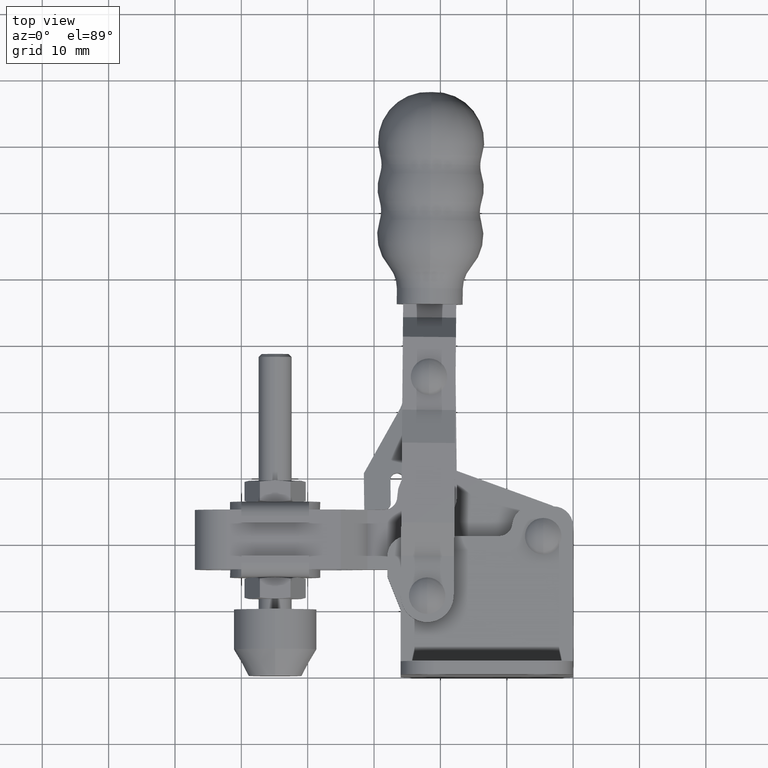
[diagram: clean part render]
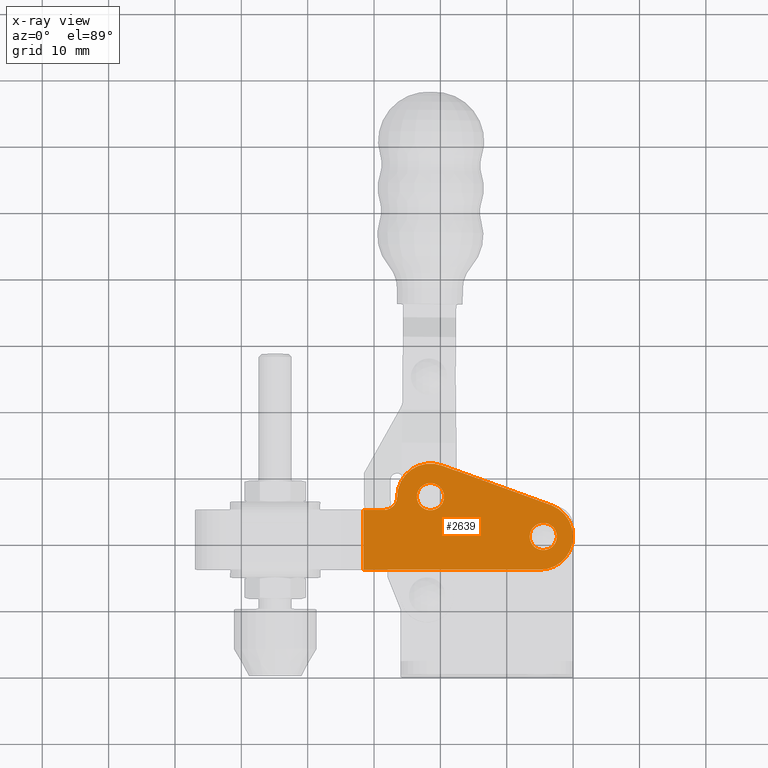
[diagram: x-ray — body ghosted, one internal face saturated and labeled with its STEP entity id]
A machine part, top view, then the same camera in x-ray: the body is ghosted and one INTERNAL B-rep face — a face not visible from any outside direction — is saturated and labeled: STEP entity #2639.
In plain terms, the highlighted planar face has unit normal (-0, 0, 1).
Its self-contained STEP definition (entity closure, byte-faithful):
#6 = CARTESIAN_POINT ( 'NONE',  ( -21.49999999999967000, 26.99999999999953800, -1.999949999999928800 ) ) ;
#23 = CIRCLE ( 'NONE', #3112, 2.049999999999999800 ) ;
#308 = ORIENTED_EDGE ( 'NONE', *, *, #2673, .F. ) ;
#334 = LINE ( 'NONE', #5895, #2650 ) ;
#336 = CARTESIAN_POINT ( 'NONE',  ( -4.999999999999595000, 21.00000000000011700, -1.999949999999875300 ) ) ;
#594 = CIRCLE ( 'NONE', #658, 2.049999999999999800 ) ;
#642 = CIRCLE ( 'NONE', #7524, 2.049999999999999800 ) ;
#658 = AXIS2_PLACEMENT_3D ( 'NONE', #1041, #7095, #1915 ) ;
#898 = EDGE_LOOP ( 'NONE', ( #9613, #5431, #7912, #7868, #4305, #8903, #1266, #11174 ) ) ;
#1041 = CARTESIAN_POINT ( 'NONE',  ( -4.499999999999983100, 20.99999999999997900, -1.999949999999873800 ) ) ;
#1095 = CARTESIAN_POINT ( 'NONE',  ( -6.549999999999981200, 20.99999999999997900, -1.999949999999880200 ) ) ;
#1199 = DIRECTION ( 'NONE',  ( 0.0000000000000000000, -1.000000000000000000, 0.0000000000000000000 ) ) ;
#1266 = ORIENTED_EDGE ( 'NONE', *, *, #9165, .T. ) ;
#1361 = CARTESIAN_POINT ( 'NONE',  ( -19.44999999999966900, 26.99999999999953800, -1.999949999999922200 ) ) ;
#1392 = ORIENTED_EDGE ( 'NONE', *, *, #5196, .F. ) ;
#1646 = CARTESIAN_POINT ( 'NONE',  ( 2.004409014085022400, 32.00000000000009900, -1.999949999999852900 ) ) ;
#1742 = VERTEX_POINT ( 'NONE', #10714 ) ;
#1816 = EDGE_CURVE ( 'NONE', #7513, #4403, #6682, .T. ) ;
#1915 = DIRECTION ( 'NONE',  ( 0.0000000000000000000, -1.000000000000000000, 0.0000000000000000000 ) ) ;
#2030 = LINE ( 'NONE', #8607, #6368 ) ;
#2048 = FACE_BOUND ( 'NONE', #6834, .T. ) ;
#2452 = AXIS2_PLACEMENT_3D ( 'NONE', #9058, #3855, #9939 ) ;
#2639 = ADVANCED_FACE ( 'NONE', ( #2048, #11001, #8727 ), #11021, .F. ) ;
#2650 = VECTOR ( 'NONE', #11082, 1000.000000000000000 ) ;
#2673 = EDGE_CURVE ( 'NONE', #5478, #5966, #23, .T. ) ;
#2993 = DIRECTION ( 'NONE',  ( 3.218037752536709400E-015, 1.540743955509788700E-032, -1.000000000000000000 ) ) ;
#3060 = AXIS2_PLACEMENT_3D ( 'NONE', #336, #6397, #1199 ) ;
#3112 = AXIS2_PLACEMENT_3D ( 'NONE', #6, #3678, #10577 ) ;
#3164 = CARTESIAN_POINT ( 'NONE',  ( 2.004409014085022400, 15.99999999999999600, -1.999949999999852900 ) ) ;
#3252 = CARTESIAN_POINT ( 'NONE',  ( -23.54999999999966700, 26.99999999999953800, -1.999949999999935300 ) ) ;
#3297 = EDGE_CURVE ( 'NONE', #8218, #8812, #2030, .T. ) ;
#3332 = EDGE_CURVE ( 'NONE', #8812, #7860, #9645, .T. ) ;
#3525 = CARTESIAN_POINT ( 'NONE',  ( -4.999999999999595000, 21.00000000000011700, -1.999949999999875300 ) ) ;
#3529 = CARTESIAN_POINT ( 'NONE',  ( -3.291284684566062200, 25.69896711744242200, -1.999949999999869800 ) ) ;
#3575 = CIRCLE ( 'NONE', #2452, 5.000000000000559600 ) ;
#3678 = DIRECTION ( 'NONE',  ( 3.218037752536709400E-015, 1.540743955509788700E-032, -1.000000000000000000 ) ) ;
#3699 = AXIS2_PLACEMENT_3D ( 'NONE', #1646, #4541, #7558 ) ;
#3807 = VERTEX_POINT ( 'NONE', #1095 ) ;
#3855 = DIRECTION ( 'NONE',  ( 3.218037752536709400E-015, 1.540743955509788700E-032, -1.000000000000000000 ) ) ;
#3874 = CARTESIAN_POINT ( 'NONE',  ( -4.499999999999983100, 20.99999999999997900, -1.999949999999873800 ) ) ;
#4305 = ORIENTED_EDGE ( 'NONE', *, *, #3297, .T. ) ;
#4370 = EDGE_CURVE ( 'NONE', #11014, #1742, #8109, .T. ) ;
#4403 = VERTEX_POINT ( 'NONE', #8403 ) ;
#4455 = CARTESIAN_POINT ( 'NONE',  ( -19.79128468456598700, 31.69896711744225800, -1.999949999999923100 ) ) ;
#4541 = DIRECTION ( 'NONE',  ( -3.218037752536709400E-015, 0.0000000000000000000, 1.000000000000000000 ) ) ;
#4705 = VECTOR ( 'NONE', #6729, 1000.000000000000100 ) ;
#4745 = EDGE_CURVE ( 'NONE', #4403, #11014, #11044, .T. ) ;
#4758 = DIRECTION ( 'NONE',  ( 0.0000000000000000000, -1.000000000000000000, 0.0000000000000000000 ) ) ;
#4767 = EDGE_CURVE ( 'NONE', #3807, #10830, #5367, .T. ) ;
#4957 = EDGE_CURVE ( 'NONE', #6342, #7513, #6025, .T. ) ;
#4980 = EDGE_CURVE ( 'NONE', #1742, #8218, #334, .T. ) ;
#5196 = EDGE_CURVE ( 'NONE', #10830, #3807, #594, .T. ) ;
#5316 = ORIENTED_EDGE ( 'NONE', *, *, #4767, .F. ) ;
#5367 = CIRCLE ( 'NONE', #6526, 2.049999999999999800 ) ;
#5431 = ORIENTED_EDGE ( 'NONE', *, *, #4745, .T. ) ;
#5478 = VERTEX_POINT ( 'NONE', #3252 ) ;
#5556 = CARTESIAN_POINT ( 'NONE',  ( -31.62125233435353900, 25.00000000000011700, -1.999949999999959500 ) ) ;
#5817 = CARTESIAN_POINT ( 'NONE',  ( -26.50000000000027000, 26.99999999999995400, -1.999949999999944800 ) ) ;
#5854 = CARTESIAN_POINT ( 'NONE',  ( -3.291284684566082100, 25.69896711744242500, -1.999949999999869800 ) ) ;
#5895 = CARTESIAN_POINT ( 'NONE',  ( -31.62125233435353500, 32.00000000000000000, -1.999949999999960800 ) ) ;
#5966 = VERTEX_POINT ( 'NONE', #1361 ) ;
#6025 = LINE ( 'NONE', #5854, #4705 ) ;
#6279 = CARTESIAN_POINT ( 'NONE',  ( -28.49999999999967000, 25.00000000000012100, -1.999949999999950800 ) ) ;
#6342 = VERTEX_POINT ( 'NONE', #4455 ) ;
#6368 = VECTOR ( 'NONE', #10047, 1000.000000000000000 ) ;
#6397 = DIRECTION ( 'NONE',  ( 3.218037752536709400E-015, 1.540743955509788700E-032, -1.000000000000000000 ) ) ;
#6526 = AXIS2_PLACEMENT_3D ( 'NONE', #3874, #9955, #4758 ) ;
#6627 = ORIENTED_EDGE ( 'NONE', *, *, #7657, .F. ) ;
#6682 = CIRCLE ( 'NONE', #9067, 5.000000000000115500 ) ;
#6729 = DIRECTION ( 'NONE',  ( 0.9397934234884394200, -0.3417430630866977700, 3.024290716371515900E-015 ) ) ;
#6834 = EDGE_LOOP ( 'NONE', ( #1392, #5316 ) ) ;
#7088 = AXIS2_PLACEMENT_3D ( 'NONE', #10182, #10105, #10078 ) ;
#7095 = DIRECTION ( 'NONE',  ( 3.218037752536709400E-015, 1.540743955509788700E-032, -1.000000000000000000 ) ) ;
#7513 = VERTEX_POINT ( 'NONE', #3529 ) ;
#7524 = AXIS2_PLACEMENT_3D ( 'NONE', #8194, #2993, #9071 ) ;
#7558 = DIRECTION ( 'NONE',  ( 0.0000000000000000000, -1.000000000000000000, 0.0000000000000000000 ) ) ;
#7657 = EDGE_CURVE ( 'NONE', #5966, #5478, #642, .T. ) ;
#7860 = VERTEX_POINT ( 'NONE', #5817 ) ;
#7868 = ORIENTED_EDGE ( 'NONE', *, *, #4980, .T. ) ;
#7912 = ORIENTED_EDGE ( 'NONE', *, *, #4370, .T. ) ;
#8109 = LINE ( 'NONE', #3164, #10402 ) ;
#8194 = CARTESIAN_POINT ( 'NONE',  ( -21.49999999999967000, 26.99999999999953800, -1.999949999999928800 ) ) ;
#8218 = VERTEX_POINT ( 'NONE', #5556 ) ;
#8360 = DIRECTION ( 'NONE',  ( -1.000000000000000000, 0.0000000000000000000, -3.218037752536707800E-015 ) ) ;
#8368 = CARTESIAN_POINT ( 'NONE',  ( -4.999999999999595000, 15.99999999999999600, -1.999949999999875300 ) ) ;
#8403 = CARTESIAN_POINT ( 'NONE',  ( 5.212844045310305300E-013, 21.00000000000011700, -1.999949999999859300 ) ) ;
#8471 = DIRECTION ( 'NONE',  ( 0.0000000000000000000, -1.000000000000000000, 0.0000000000000000000 ) ) ;
#8508 = DIRECTION ( 'NONE',  ( 3.218037752536709400E-015, 1.540743955509788700E-032, -1.000000000000000000 ) ) ;
#8607 = CARTESIAN_POINT ( 'NONE',  ( -56.99999999999965200, 25.00000000000009200, -1.999950000000042700 ) ) ;
#8727 = FACE_OUTER_BOUND ( 'NONE', #898, .T. ) ;
#8812 = VERTEX_POINT ( 'NONE', #6279 ) ;
#8903 = ORIENTED_EDGE ( 'NONE', *, *, #3332, .T. ) ;
#8941 = CARTESIAN_POINT ( 'NONE',  ( -2.449999999999984600, 20.99999999999997900, -1.999949999999867100 ) ) ;
#9058 = CARTESIAN_POINT ( 'NONE',  ( -21.49999999999967000, 26.99999999999953800, -1.999949999999928800 ) ) ;
#9067 = AXIS2_PLACEMENT_3D ( 'NONE', #3525, #8508, #8471 ) ;
#9071 = DIRECTION ( 'NONE',  ( 0.0000000000000000000, -1.000000000000000000, 0.0000000000000000000 ) ) ;
#9165 = EDGE_CURVE ( 'NONE', #7860, #6342, #3575, .T. ) ;
#9613 = ORIENTED_EDGE ( 'NONE', *, *, #1816, .T. ) ;
#9645 = CIRCLE ( 'NONE', #7088, 1.999999999999404900 ) ;
#9939 = DIRECTION ( 'NONE',  ( 6.938893903906452300E-016, -1.000000000000000000, 0.0000000000000000000 ) ) ;
#9955 = DIRECTION ( 'NONE',  ( 3.218037752536709400E-015, 1.540743955509788700E-032, -1.000000000000000000 ) ) ;
#10047 = DIRECTION ( 'NONE',  ( 1.000000000000000000, 9.738798461624190700E-016, 3.218037752536707800E-015 ) ) ;
#10078 = DIRECTION ( 'NONE',  ( 0.0000000000000000000, -1.000000000000000000, 0.0000000000000000000 ) ) ;
#10105 = DIRECTION ( 'NONE',  ( -3.218037752536709400E-015, -1.540743955509788700E-032, 1.000000000000000000 ) ) ;
#10182 = CARTESIAN_POINT ( 'NONE',  ( -28.49999999999967300, 26.99999999999948100, -1.999949999999950800 ) ) ;
#10402 = VECTOR ( 'NONE', #8360, 1000.000000000000000 ) ;
#10577 = DIRECTION ( 'NONE',  ( 0.0000000000000000000, -1.000000000000000000, 0.0000000000000000000 ) ) ;
#10714 = CARTESIAN_POINT ( 'NONE',  ( -31.62125233435353500, 15.99999999999999600, -1.999949999999960800 ) ) ;
#10770 = EDGE_LOOP ( 'NONE', ( #6627, #308 ) ) ;
#10830 = VERTEX_POINT ( 'NONE', #8941 ) ;
#11001 = FACE_BOUND ( 'NONE', #10770, .T. ) ;
#11014 = VERTEX_POINT ( 'NONE', #8368 ) ;
#11021 = PLANE ( 'NONE',  #3699 ) ;
#11044 = CIRCLE ( 'NONE', #3060, 5.000000000000115500 ) ;
#11082 = DIRECTION ( 'NONE',  ( 0.0000000000000000000, 1.000000000000000000, 0.0000000000000000000 ) ) ;
#11174 = ORIENTED_EDGE ( 'NONE', *, *, #4957, .T. ) ;